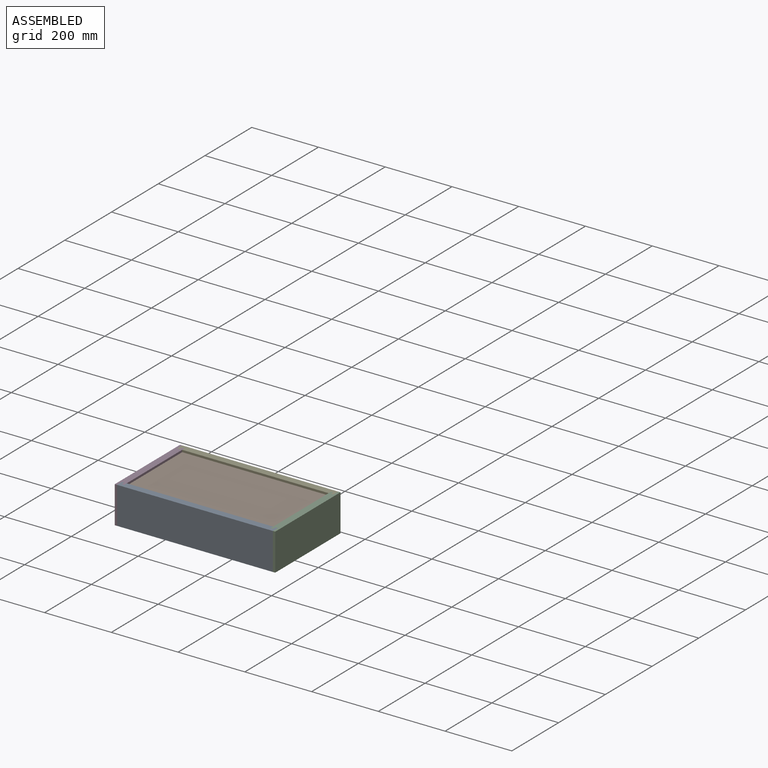
[diagram: assembled view]
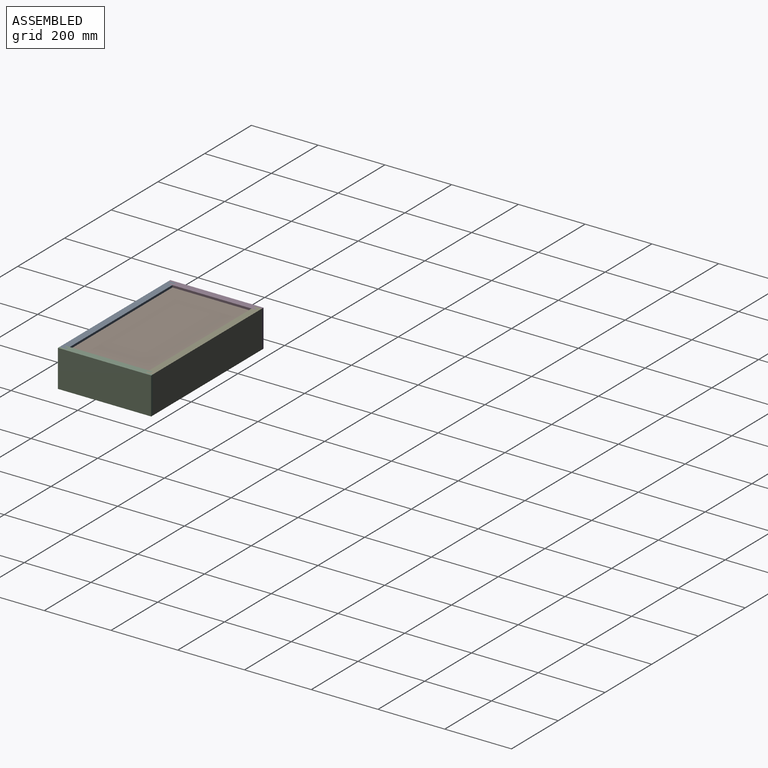
[diagram: assembled view, second angle]
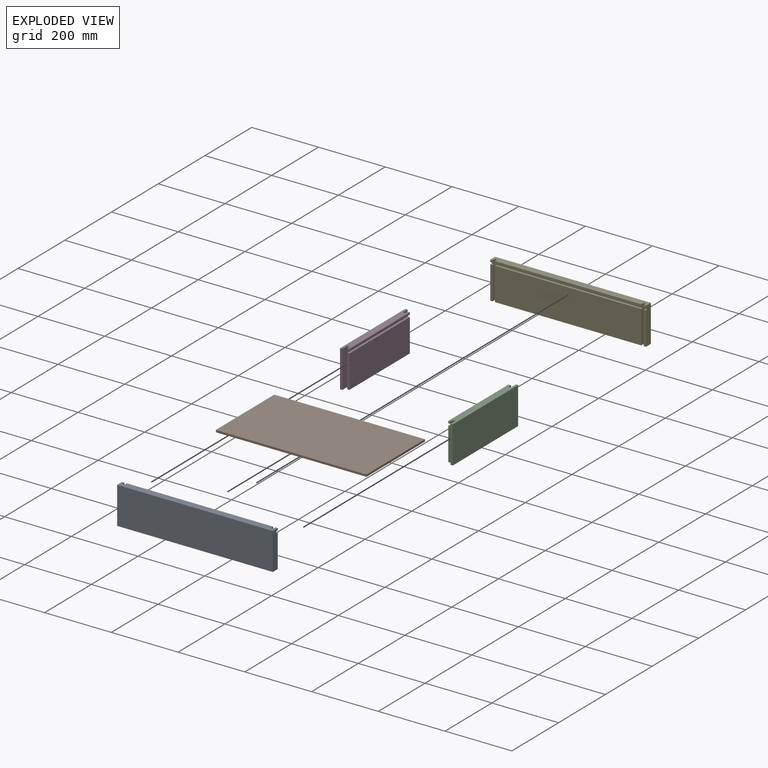
[diagram: exploded view]
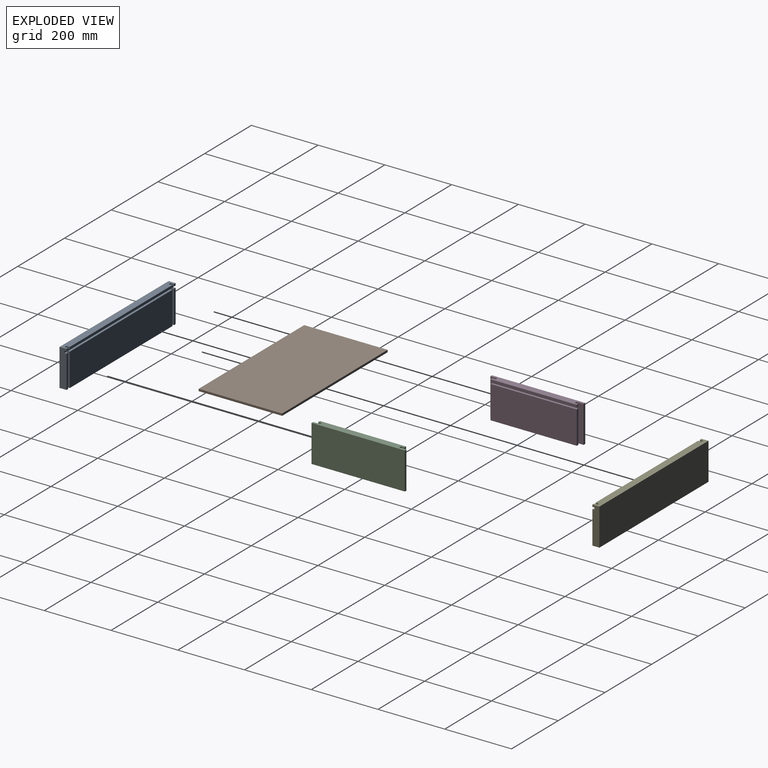
[diagram: exploded view, second angle]
ASSEMBLY  parts=5 mates=12
PART A: 26 faces, bbox 466.7x21x111.1 mm
  f0: plane 438.79x98.43mm, normal (0,-1,0), area 43187.4mm2, adj f5,f8,f13,f20
  f1: plane 98.43x6.99mm, normal (0,-1,0), area 687.5mm2, adj f4,f8,f10,f23
  f2: plane 98.43x6.99mm, normal (0,-1,0), area 687.5mm2, adj f3,f8,f15,f17
  f3: plane 111.13x20.96mm, normal (-1,0,0), area 2288.3mm2, adj f2,f8,f9,f11,f12,f17,f18,f19
  f4: plane 111.13x10.48mm, normal (-1,0,0), area 1124mm2, adj f1,f7,f8,f9,f14,f23,f24,f25
  f5: plane 111.13x10.48mm, normal (-1,0,0), area 1124mm2, adj f0,f6,f8,f9,f16,f20,f21,f22
  f6: plane 438.79x6.35mm, normal (0,-1,0), area 2786.3mm2, adj f5,f9,f13,f21
  f7: plane 6.99x6.35mm, normal (0,-1,0), area 44.4mm2, adj f4,f9,f10,f24
  f8: plane 466.73x20.96mm, normal (0,0,1), area 9633.9mm2, adj f0,f1,f2,f3,f4,f5,f10,f12
  f9: plane 466.73x20.96mm, normal (0,0,-1), area 9633.9mm2, adj f3,f4,f5,f6,f7,f10,f11,f12
  f10: plane 111.13x20.96mm, normal (1,0,0), area 2288.3mm2, adj f1,f7,f8,f9,f12,f23,f24,f25
  f11: plane 6.99x6.35mm, normal (0,-1,0), area 44.4mm2, adj f3,f9,f15,f18
  f12: plane 466.73x111.13mm, normal (0,1,0), area 51864.8mm2, adj f3,f8,f9,f10
  f13: plane 111.13x10.48mm, normal (1,0,0), area 1124mm2, adj f0,f6,f8,f9,f14,f20,f21,f22
  f14: plane 111.13x6.99mm, normal (0,-1,0), area 776.2mm2, adj f4,f8,f9,f13
  f15: plane 111.13x10.48mm, normal (1,0,0), area 1124mm2, adj f2,f8,f9,f11,f16,f17,f18,f19
  f16: plane 111.13x6.99mm, normal (0,-1,0), area 776.2mm2, adj f5,f8,f9,f15
  f17: plane 6.99x6.35mm, normal (0,0,-1), area 44.4mm2, adj f2,f3,f15,f19
  f18: plane 6.99x6.35mm, normal (0,0,1), area 44.4mm2, adj f3,f11,f15,f19
  f19: plane 6.99x6.35mm, normal (0,-1,0), area 44.4mm2, adj f3,f15,f17,f18
  f20: plane 438.79x6.35mm, normal (0,0,-1), area 2786.3mm2, adj f0,f5,f13,f22
  f21: plane 438.79x6.35mm, normal (0,0,1), area 2786.3mm2, adj f5,f6,f13,f22
  f22: plane 438.79x6.35mm, normal (0,-1,0), area 2786.3mm2, adj f5,f13,f20,f21
  f23: plane 6.99x6.35mm, normal (0,0,-1), area 44.4mm2, adj f1,f4,f10,f25
  f24: plane 6.99x6.35mm, normal (0,0,1), area 44.4mm2, adj f4,f7,f10,f25
  f25: plane 6.99x6.35mm, normal (0,-1,0), area 44.4mm2, adj f4,f10,f23,f24
PART B: 6 faces, bbox 250.2x6.4x451.5 mm
  f0: plane 451.49x6.35mm, normal (-1,0,0), area 2866.9mm2, adj f1,f3,f4,f5
  f1: plane 250.19x6.35mm, normal (0,0,-1), area 1588.7mm2, adj f0,f2,f4,f5
  f2: plane 451.49x6.35mm, normal (1,0,0), area 2866.9mm2, adj f1,f3,f4,f5
  f3: plane 250.19x6.35mm, normal (0,0,1), area 1588.7mm2, adj f0,f2,f4,f5
  f4: plane 451.49x250.19mm, normal (0,-1,0), area 112957mm2, adj f0,f1,f2,f3
  f5: plane 451.49x250.19mm, normal (0,1,0), area 112957mm2, adj f0,f1,f2,f3
PART C: 18 faces, bbox 279.4x21x111.1 mm
  f0: plane 258.45x6.35mm, normal (0,1,0), area 1641.1mm2, adj f1,f6,f8,f16
  f1: plane 111.13x6.99mm, normal (-1,0,0), area 735.9mm2, adj f0,f2,f4,f6,f14,f15,f16,f17
  f2: plane 258.45x98.43mm, normal (0,1,0), area 25437.4mm2, adj f1,f4,f8,f15
  f3: plane 111.13x6.99mm, normal (-1,0,0), area 776.2mm2, adj f4,f6,f7,f12
  f4: plane 279.4x20.96mm, normal (0,0,-1), area 5415.7mm2, adj f1,f2,f3,f5,f7,f8,f9,f10
  f5: plane 111.13x6.99mm, normal (1,0,0), area 776.2mm2, adj f4,f6,f7,f9
  f6: plane 279.4x20.96mm, normal (0,0,1), area 5415.7mm2, adj f0,f1,f3,f5,f7,f8,f9,f10
  f7: plane 279.4x111.13mm, normal (0,-1,0), area 31048.3mm2, adj f3,f4,f5,f6
  f8: plane 111.13x6.99mm, normal (1,0,0), area 735.9mm2, adj f0,f2,f4,f6,f10,f15,f16,f17
  f9: plane 111.13x20.96mm, normal (0,1,0), area 2328.6mm2, adj f4,f5,f6,f11
  f10: plane 111.13x10.48mm, normal (0,-1,0), area 1164.3mm2, adj f4,f6,f8,f11
  f11: plane 111.13x6.99mm, normal (1,0,0), area 776.2mm2, adj f4,f6,f9,f10
  f12: plane 111.13x20.96mm, normal (0,1,0), area 2328.6mm2, adj f3,f4,f6,f13
  f13: plane 111.13x6.99mm, normal (-1,0,0), area 776.2mm2, adj f4,f6,f12,f14
  f14: plane 111.13x10.48mm, normal (0,-1,0), area 1164.3mm2, adj f1,f4,f6,f13
  f15: plane 258.45x6.35mm, normal (0,0,1), area 1641.1mm2, adj f1,f2,f8,f17
  f16: plane 258.45x6.35mm, normal (0,0,-1), area 1641.1mm2, adj f0,f1,f8,f17
  f17: plane 258.45x6.35mm, normal (0,1,0), area 1641.1mm2, adj f1,f8,f15,f16
PART D: same geometry as C
PART E: same geometry as A
PLACE A rot(axis=(1,0,0),180deg) t=(-332.51,99.63,185.59)mm
PLACE B rot(axis=(-0.58,0.58,-0.58),120deg) t=(-324.89,364.42,172.89)mm
PLACE C rot(axis=(0,0,1),90deg) t=(120.25,99.63,74.46)mm
PLACE D rot(axis=(0,0,-1),90deg) t=(-318.54,379.03,74.46)mm
PLACE E rot(axis=(0,-1,0),180deg) t=(134.22,379.03,185.59)mm
MATE planar C.f3 <-> A.f12  axis (0,-1,0) through (141.2,99.63,130.02)mm
MATE planar D.f5 <-> A.f12  axis (0,-1,0) through (-336,99.63,185.59)mm
MATE planar E.f9 <-> C.f6  axis (0,0,1) through (-99.14,368.63,185.59)mm
MATE planar D.f9 <-> A.f3  axis (1,0,0) through (-332.51,110.11,130.02)mm
MATE planar B.f4 <-> A.f21  axis (0,0,1) through (-99.14,239.33,179.24)mm
MATE planar E.f12 <-> C.f5  axis (0,1,0) through (-99.14,379.03,130.02)mm
MATE planar B.f1 <-> D.f17  axis (-1,0,0) through (-324.89,239.33,176.06)mm
MATE planar E.f3 <-> C.f9  axis (1,0,0) through (134.22,368.68,129.21)mm
MATE planar B.f2 <-> A.f22  axis (0,-1,0) through (-99.14,114.23,179.24)mm
MATE planar C.f9 <-> A.f10  axis (-1,0,0) through (134.22,368.55,130.02)mm
MATE planar C.f6 <-> A.f9  axis (0,0,1) through (120.25,239.33,185.59)mm
MATE planar D.f6 <-> A.f9  axis (0,0,1) through (-339.49,239.33,185.59)mm
